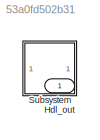
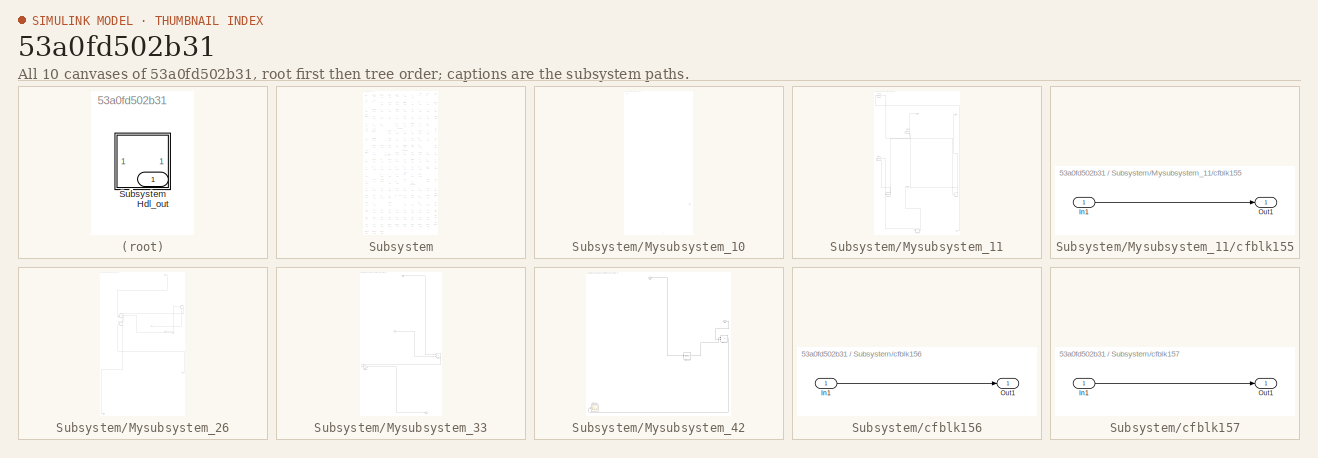
[diagram: thumbnail index - all 10 canvases of the model, root first then tree order]
MODEL slx_53a0fd502b31
KIND model
CONFIG AbsTol = auto
CONFIG EnableMultiTasking = off
CONFIG FixedStep = auto
CONFIG MaxStep = auto
CONFIG MinStep = auto
CONFIG RelTol = 1e-3
CONFIG SampleTimeConstraint = Unconstrained
CONFIG SolverName = VariableStepAuto
CONFIG StartTime = 0.0
CONFIG StopTime = 10.0
BLOCK [Outport] Hdl_out
  OutDataTypeStr = uint8
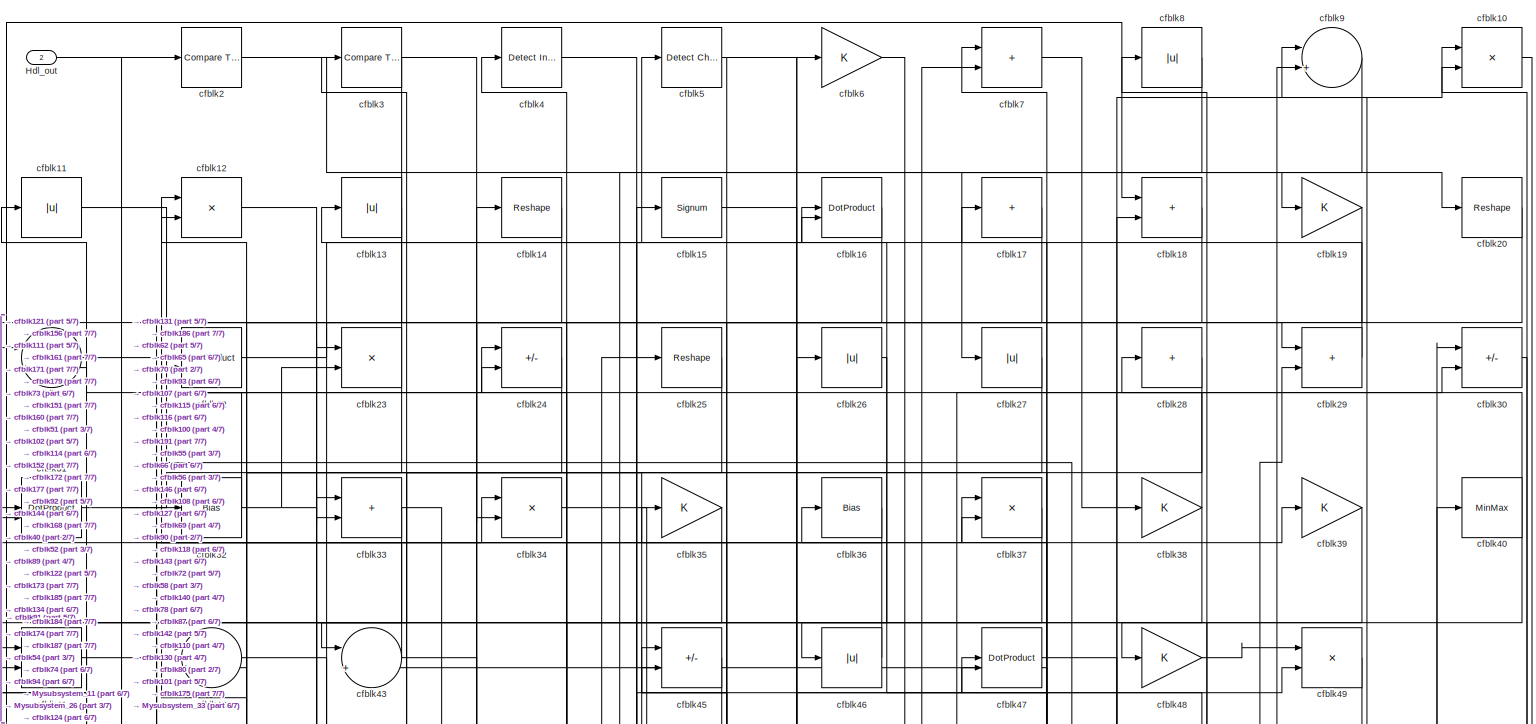
[diagram: Subsystem - part 1/7, full width, top band]
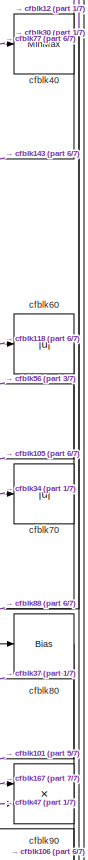
[diagram: Subsystem - part 2/7, top right region]
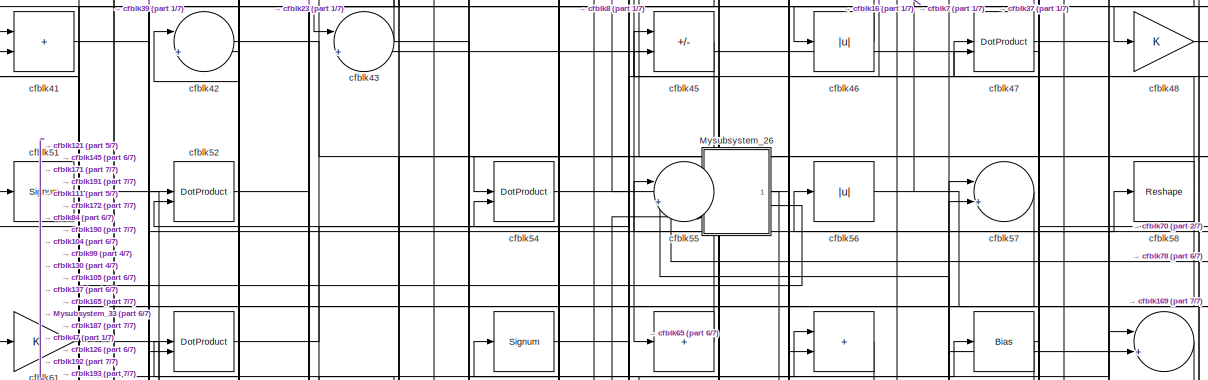
[diagram: Subsystem - part 3/7, full width, top band]
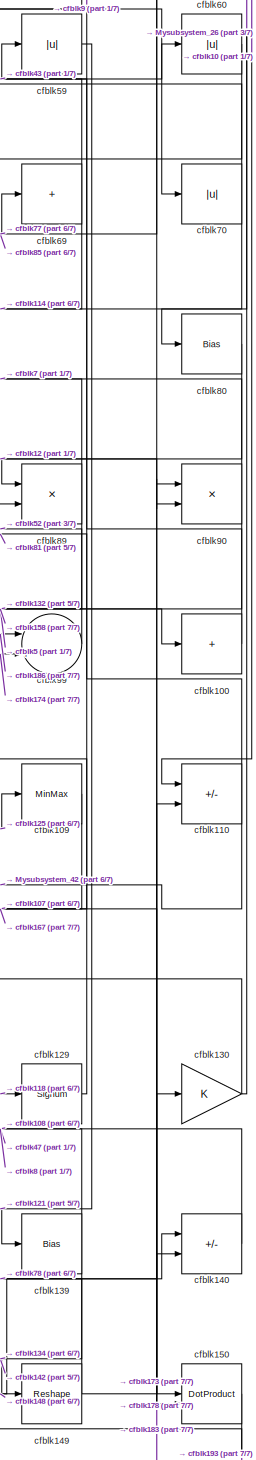
[diagram: Subsystem - part 4/7, middle right region]
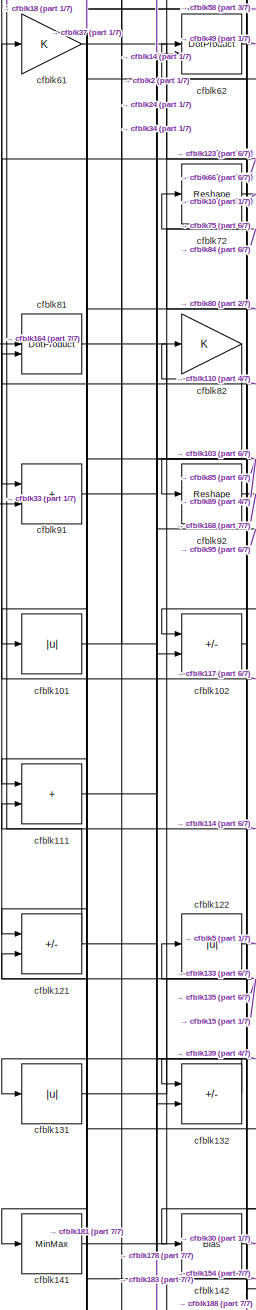
[diagram: Subsystem - part 5/7, middle left region]
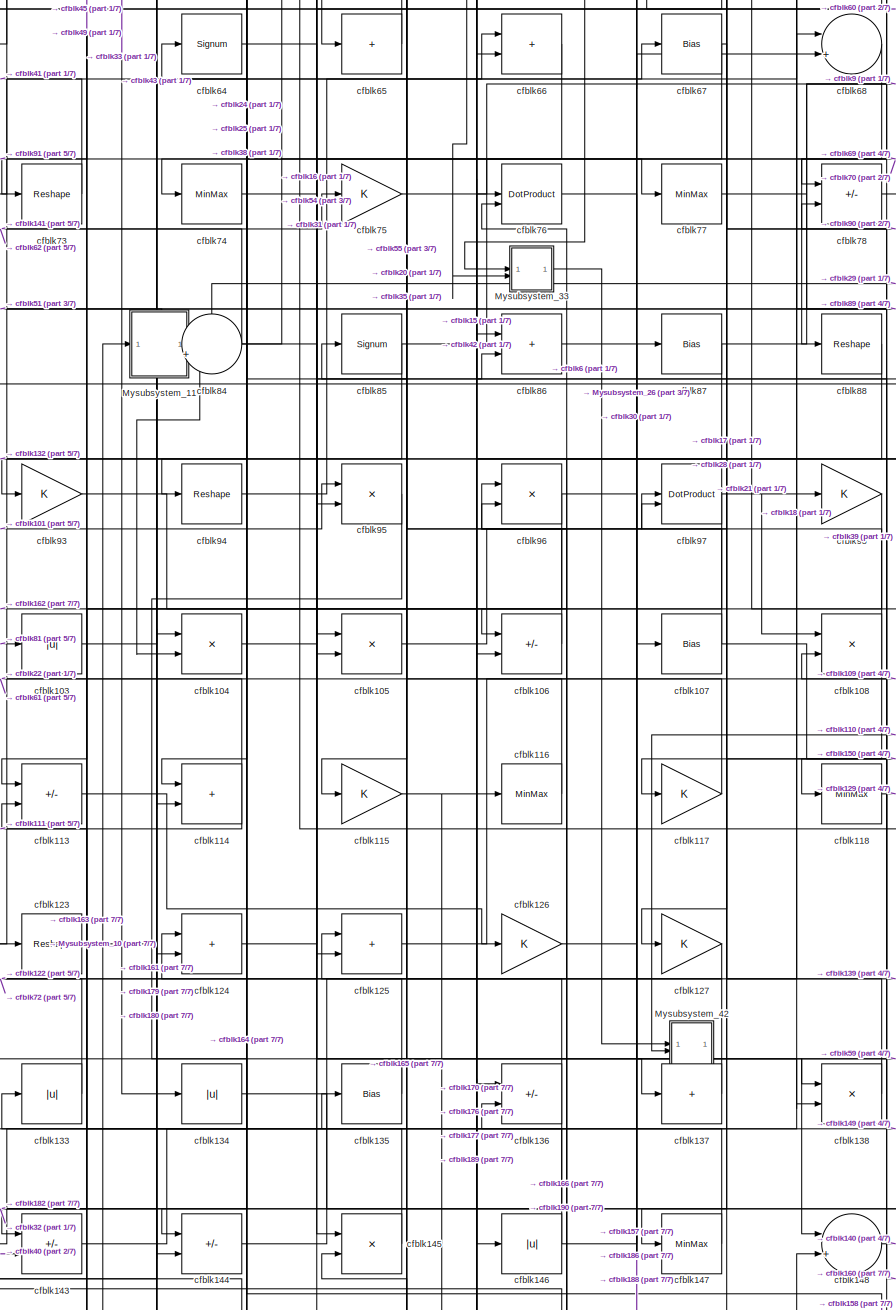
[diagram: Subsystem - part 6/7, central region]
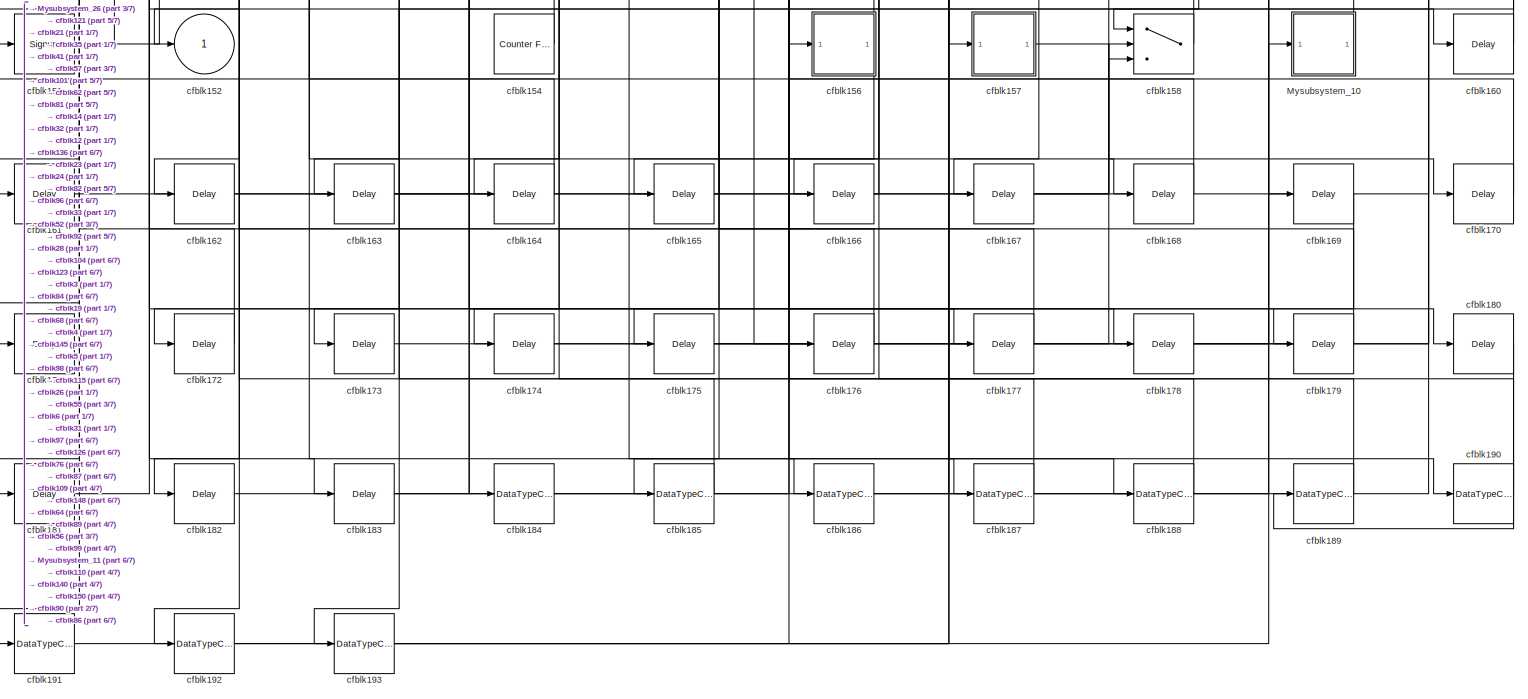
[diagram: Subsystem - part 7/7, full width, bottom band]
BLOCK [SubSystem] Subsystem
BLOCK [Outport] Subsystem/Hdl_out
  OutDataTypeStr = uint8
  Port = 2
BLOCK [SubSystem] Subsystem/Mysubsystem_10
  RTWFcnName = Mysubsystem_10
  RTWFcnNameOpts = User specified
  RTWFileNameOpts = Use function name
  RTWSystemCode = Reusable function
  TreatAsAtomicUnit = on
BLOCK [Inport] Subsystem/Mysubsystem_10/In1
BLOCK [Outport] Subsystem/Mysubsystem_10/Out1
BLOCK [Delay] Subsystem/Mysubsystem_10/cfblk159
  InputPortMap = u0
  SampleTime = 1
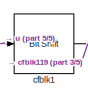
[diagram: Subsystem/Mysubsystem_11 - part 1/5, top left region]
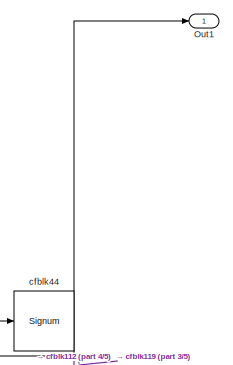
[diagram: Subsystem/Mysubsystem_11 - part 2/5, top center region]
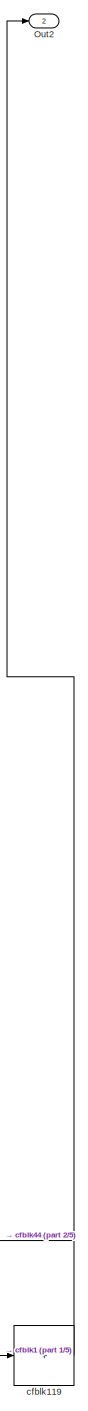
[diagram: Subsystem/Mysubsystem_11 - part 3/5, middle right region]
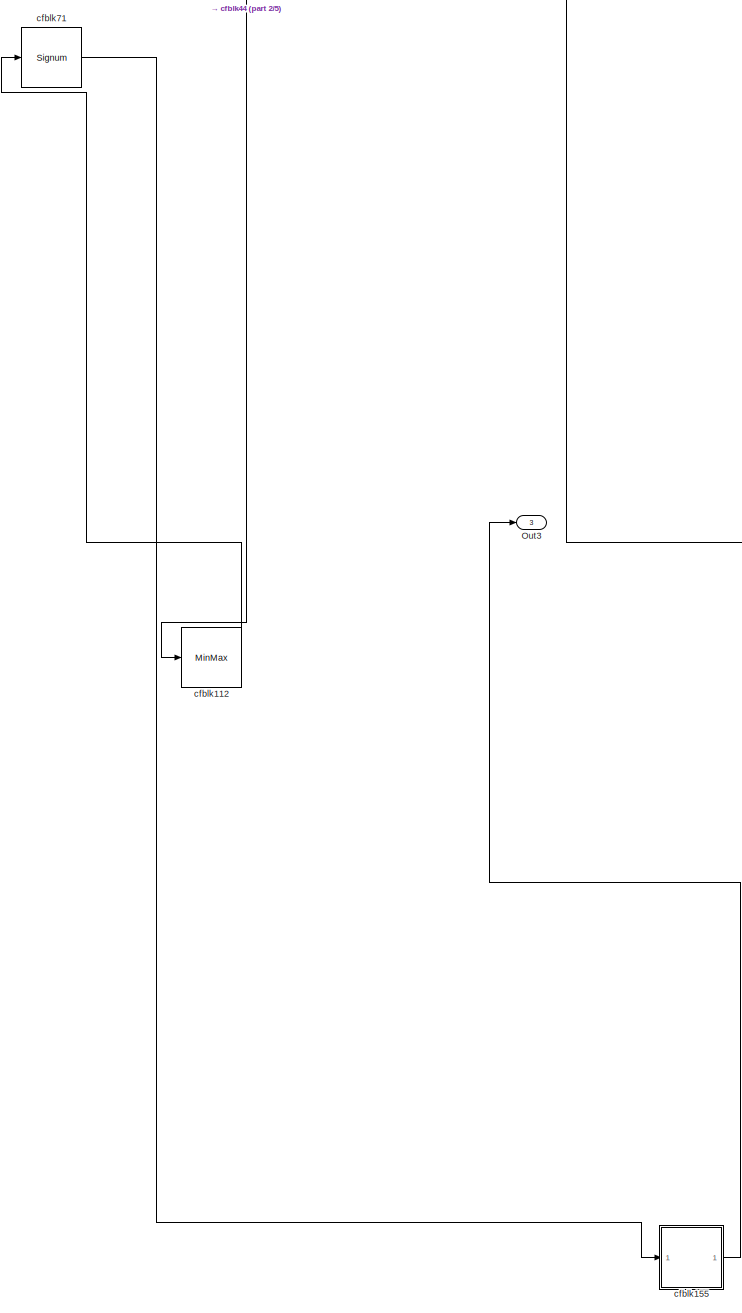
[diagram: Subsystem/Mysubsystem_11 - part 4/5, bottom left region]
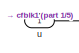
[diagram: Subsystem/Mysubsystem_11 - part 5/5, bottom right region]
BLOCK [SubSystem] Subsystem/Mysubsystem_11
  RTWFcnName = Mysubsystem_11
  RTWFcnNameOpts = User specified
  RTWFileNameOpts = Use function name
  RTWSystemCode = Reusable function
  TreatAsAtomicUnit = on
BLOCK [Outport] Subsystem/Mysubsystem_11/Out1
BLOCK [Outport] Subsystem/Mysubsystem_11/Out2
  Port = 2
BLOCK [Outport] Subsystem/Mysubsystem_11/Out3
  Port = 3
BLOCK [Reference] Subsystem/Mysubsystem_11/cfblk1  REF=hdlsllib/Logic and Bit
Operations/Bit Shift
  SourceBlock = hdlsllib/Logic and Bit\nOperations/Bit Shift
  SourceType = Bit Shift
BLOCK [MinMax] Subsystem/Mysubsystem_11/cfblk112
BLOCK [Sum] Subsystem/Mysubsystem_11/cfblk119
  IconShape = rectangular
  Inputs = +
BLOCK [SubSystem] Subsystem/Mysubsystem_11/cfblk155
  LibrarySourceBlock = hdlsllib/Ports &\nSubsystems/Subsystem
BLOCK [Inport] Subsystem/Mysubsystem_11/cfblk155/In1
BLOCK [Outport] Subsystem/Mysubsystem_11/cfblk155/Out1
BLOCK [Signum] Subsystem/Mysubsystem_11/cfblk44
BLOCK [Signum] Subsystem/Mysubsystem_11/cfblk71
BLOCK [Inport] Subsystem/Mysubsystem_11/u
BLOCK [SubSystem] Subsystem/Mysubsystem_26
  RTWFcnName = Mysubsystem_26
  RTWFcnNameOpts = User specified
  RTWFileNameOpts = Use function name
  RTWSystemCode = Reusable function
  TreatAsAtomicUnit = on
BLOCK [Inport] Subsystem/Mysubsystem_26/In1
BLOCK [Inport] Subsystem/Mysubsystem_26/In2
  Port = 2
BLOCK [Inport] Subsystem/Mysubsystem_26/In3
  Port = 3
BLOCK [Inport] Subsystem/Mysubsystem_26/In4
  Port = 4
BLOCK [Outport] Subsystem/Mysubsystem_26/Out1
BLOCK [Outport] Subsystem/Mysubsystem_26/Out2
  Port = 2
BLOCK [Sum] Subsystem/Mysubsystem_26/cfblk50
  Inputs = |++
BLOCK [Sum] Subsystem/Mysubsystem_26/cfblk53
  IconShape = rectangular
  Inputs = +-
BLOCK [Sum] Subsystem/Mysubsystem_26/cfblk63
  IconShape = rectangular
BLOCK [SubSystem] Subsystem/Mysubsystem_33
  RTWFcnName = Mysubsystem_33
  RTWFcnNameOpts = User specified
  RTWFileNameOpts = Use function name
  RTWSystemCode = Reusable function
  TreatAsAtomicUnit = on
BLOCK [Inport] Subsystem/Mysubsystem_33/In1
BLOCK [Inport] Subsystem/Mysubsystem_33/In2
  Port = 2
BLOCK [Outport] Subsystem/Mysubsystem_33/Out1
BLOCK [Product] Subsystem/Mysubsystem_33/cfblk79
  Inputs = */
  RndMeth = Zero
  SaturateOnIntegerOverflow = on
BLOCK [Gain] Subsystem/Mysubsystem_33/cfblk83
BLOCK [SubSystem] Subsystem/Mysubsystem_42
  RTWFcnName = Mysubsystem_42
  RTWFcnNameOpts = User specified
  RTWFileNameOpts = Use function name
  RTWSystemCode = Reusable function
  TreatAsAtomicUnit = on
BLOCK [Inport] Subsystem/Mysubsystem_42/In1
BLOCK [Inport] Subsystem/Mysubsystem_42/In2
  Port = 2
BLOCK [Product] Subsystem/Mysubsystem_42/cfblk120
  Inputs = */
  RndMeth = Zero
  SaturateOnIntegerOverflow = on
BLOCK [MinMax] Subsystem/Mysubsystem_42/cfblk128
BLOCK [Scope] Subsystem/Mysubsystem_42/cfblk153
  Floating = off
  NumInputPorts = 1
  ScopeSpecificationString = Simulink.scopes.TimeScopeBlockCfg('CurrentConfiguration', extmgr.ConfigurationSet(extmgr.Configuration('Core','General UI',true),extmgr.Configuration('Core','Source UI',true),extmgr.Configuration('Sources','WiredSimulink',true,'DataLoggingVariableName','ScopeData2','DataLoggingSaveFormat','Array','DataLoggingLimitDataPoints',true,'DataLoggingDecimation','1'),extmgr.Configuration('Visuals','Time Do...<+868ch>
BLOCK [Product] Subsystem/cfblk10
  Inputs = */
  OutDataTypeStr = uint8
  RndMeth = Zero
  SaturateOnIntegerOverflow = on
BLOCK [Sum] Subsystem/cfblk100
  IconShape = rectangular
  Inputs = +
  OutDataTypeStr = uint8
BLOCK [Abs] Subsystem/cfblk101
  OutDataTypeStr = uint8
  SaturateOnIntegerOverflow = off
BLOCK [Sum] Subsystem/cfblk102
  IconShape = rectangular
  Inputs = +-
  OutDataTypeStr = uint8
BLOCK [Abs] Subsystem/cfblk103
  OutDataTypeStr = uint8
  SaturateOnIntegerOverflow = off
BLOCK [Product] Subsystem/cfblk104
  Inputs = */
  OutDataTypeStr = uint8
  RndMeth = Zero
  SaturateOnIntegerOverflow = on
BLOCK [Product] Subsystem/cfblk105
  Inputs = */
  OutDataTypeStr = uint8
  RndMeth = Zero
  SaturateOnIntegerOverflow = on
BLOCK [Sum] Subsystem/cfblk106
  IconShape = rectangular
  Inputs = +-
  OutDataTypeStr = uint8
BLOCK [Bias] Subsystem/cfblk107
  Bias = 0.0
  SaturateOnIntegerOverflow = off
BLOCK [Product] Subsystem/cfblk108
  Inputs = */
  OutDataTypeStr = uint8
  RndMeth = Zero
  SaturateOnIntegerOverflow = on
BLOCK [MinMax] Subsystem/cfblk109
  OutDataTypeStr = uint8
BLOCK [Abs] Subsystem/cfblk11
  OutDataTypeStr = uint8
  SaturateOnIntegerOverflow = off
BLOCK [Sum] Subsystem/cfblk110
  IconShape = rectangular
  Inputs = +-
  OutDataTypeStr = uint8
BLOCK [Sum] Subsystem/cfblk111
  IconShape = rectangular
  OutDataTypeStr = uint8
BLOCK [Sum] Subsystem/cfblk113
  IconShape = rectangular
  Inputs = +-
  OutDataTypeStr = uint8
BLOCK [Sum] Subsystem/cfblk114
  IconShape = rectangular
  OutDataTypeStr = uint8
BLOCK [Gain] Subsystem/cfblk115
  OutDataTypeStr = uint8
BLOCK [MinMax] Subsystem/cfblk116
  OutDataTypeStr = uint8
BLOCK [Gain] Subsystem/cfblk117
  OutDataTypeStr = uint8
BLOCK [MinMax] Subsystem/cfblk118
  OutDataTypeStr = uint8
BLOCK [Product] Subsystem/cfblk12
  Inputs = */
  OutDataTypeStr = uint8
  RndMeth = Zero
  SaturateOnIntegerOverflow = on
BLOCK [Sum] Subsystem/cfblk121
  IconShape = rectangular
  Inputs = +-
  OutDataTypeStr = uint8
BLOCK [Abs] Subsystem/cfblk122
  OutDataTypeStr = uint8
  SaturateOnIntegerOverflow = off
BLOCK [Reshape] Subsystem/cfblk123
BLOCK [Sum] Subsystem/cfblk124
  IconShape = rectangular
  OutDataTypeStr = uint8
BLOCK [Sum] Subsystem/cfblk125
  IconShape = rectangular
  OutDataTypeStr = uint8
BLOCK [Gain] Subsystem/cfblk126
  OutDataTypeStr = uint8
BLOCK [Gain] Subsystem/cfblk127
  OutDataTypeStr = uint8
BLOCK [Signum] Subsystem/cfblk129
BLOCK [Abs] Subsystem/cfblk13
  OutDataTypeStr = uint8
  SaturateOnIntegerOverflow = off
BLOCK [Gain] Subsystem/cfblk130
  OutDataTypeStr = uint8
BLOCK [Abs] Subsystem/cfblk131
  OutDataTypeStr = uint8
  SaturateOnIntegerOverflow = off
BLOCK [Sum] Subsystem/cfblk132
  IconShape = rectangular
  Inputs = +-
  OutDataTypeStr = uint8
BLOCK [Abs] Subsystem/cfblk133
  OutDataTypeStr = uint8
  SaturateOnIntegerOverflow = off
BLOCK [Abs] Subsystem/cfblk134
  OutDataTypeStr = uint8
  SaturateOnIntegerOverflow = off
BLOCK [Bias] Subsystem/cfblk135
  Bias = 0.0
  SaturateOnIntegerOverflow = off
BLOCK [Sum] Subsystem/cfblk136
  IconShape = rectangular
  Inputs = +-
  OutDataTypeStr = uint8
BLOCK [Sum] Subsystem/cfblk137
  IconShape = rectangular
  Inputs = +
  OutDataTypeStr = uint8
BLOCK [Product] Subsystem/cfblk138
  Inputs = */
  OutDataTypeStr = uint8
  RndMeth = Zero
  SaturateOnIntegerOverflow = on
BLOCK [Bias] Subsystem/cfblk139
  Bias = 0.0
  SaturateOnIntegerOverflow = off
BLOCK [Reshape] Subsystem/cfblk14
BLOCK [Sum] Subsystem/cfblk140
  IconShape = rectangular
  Inputs = +-
  OutDataTypeStr = uint8
BLOCK [MinMax] Subsystem/cfblk141
  OutDataTypeStr = uint8
BLOCK [Bias] Subsystem/cfblk142
  Bias = 0.0
  SaturateOnIntegerOverflow = off
BLOCK [Sum] Subsystem/cfblk143
  IconShape = rectangular
  Inputs = +-
  OutDataTypeStr = uint8
BLOCK [Sum] Subsystem/cfblk144
  IconShape = rectangular
  Inputs = +-
  OutDataTypeStr = uint8
BLOCK [Product] Subsystem/cfblk145
  Inputs = */
  OutDataTypeStr = uint8
  RndMeth = Zero
  SaturateOnIntegerOverflow = on
BLOCK [Abs] Subsystem/cfblk146
  OutDataTypeStr = uint8
  SaturateOnIntegerOverflow = off
BLOCK [MinMax] Subsystem/cfblk147
  OutDataTypeStr = uint8
BLOCK [Sum] Subsystem/cfblk148
  Inputs = |++
  OutDataTypeStr = uint8
BLOCK [Reshape] Subsystem/cfblk149
BLOCK [Signum] Subsystem/cfblk15
BLOCK [DotProduct] Subsystem/cfblk150
  OutDataTypeStr = uint8
BLOCK [Signum] Subsystem/cfblk151
BLOCK [Outport] Subsystem/cfblk152
  OutDataTypeStr = uint8
  VectorParamsAs1DForOutWhenUnconnected = off
BLOCK [Reference] Subsystem/cfblk154  REF=hdlsllib/Sources/Counter
Free-Running
  SourceBlock = hdlsllib/Sources/Counter\nFree-Running
  SourceType = Counter Free-Running
BLOCK [SubSystem] Subsystem/cfblk156
  LibrarySourceBlock = hdlsllib/Ports &\nSubsystems/Subsystem
BLOCK [Inport] Subsystem/cfblk156/In1
BLOCK [Outport] Subsystem/cfblk156/Out1
BLOCK [SubSystem] Subsystem/cfblk157
  LibrarySourceBlock = hdlsllib/Ports &\nSubsystems/Subsystem
BLOCK [Inport] Subsystem/cfblk157/In1
BLOCK [Outport] Subsystem/cfblk157/Out1
BLOCK [Switch] Subsystem/cfblk158
  InputSameDT = off
  OutDataTypeStr = uint8
  SaturateOnIntegerOverflow = off
BLOCK [DotProduct] Subsystem/cfblk16
  OutDataTypeStr = uint8
BLOCK [Delay] Subsystem/cfblk160
  InputPortMap = u0
  SampleTime = 1
BLOCK [Delay] Subsystem/cfblk161
  InputPortMap = u0
  SampleTime = 1
BLOCK [Delay] Subsystem/cfblk162
  InputPortMap = u0
  SampleTime = 1
BLOCK [Delay] Subsystem/cfblk163
  InputPortMap = u0
  SampleTime = 1
BLOCK [Delay] Subsystem/cfblk164
  InputPortMap = u0
  SampleTime = 1
BLOCK [Delay] Subsystem/cfblk165
  InputPortMap = u0
  SampleTime = 1
BLOCK [Delay] Subsystem/cfblk166
  InputPortMap = u0
  SampleTime = 1
BLOCK [Delay] Subsystem/cfblk167
  InputPortMap = u0
  SampleTime = 1
BLOCK [Delay] Subsystem/cfblk168
  InputPortMap = u0
  SampleTime = 1
BLOCK [Delay] Subsystem/cfblk169
  InputPortMap = u0
  SampleTime = 1
BLOCK [Sum] Subsystem/cfblk17
  IconShape = rectangular
  Inputs = +
  OutDataTypeStr = uint8
BLOCK [Delay] Subsystem/cfblk170
  InputPortMap = u0
  SampleTime = 1
BLOCK [Delay] Subsystem/cfblk171
  InputPortMap = u0
  SampleTime = 1
BLOCK [Delay] Subsystem/cfblk172
  InputPortMap = u0
  SampleTime = 1
BLOCK [Delay] Subsystem/cfblk173
  InputPortMap = u0
  SampleTime = 1
BLOCK [Delay] Subsystem/cfblk174
  InputPortMap = u0
  SampleTime = 1
BLOCK [Delay] Subsystem/cfblk175
  InputPortMap = u0
  SampleTime = 1
BLOCK [Delay] Subsystem/cfblk176
  InputPortMap = u0
  SampleTime = 1
BLOCK [Delay] Subsystem/cfblk177
  InputPortMap = u0
  SampleTime = 1
BLOCK [Delay] Subsystem/cfblk178
  InputPortMap = u0
  SampleTime = 1
BLOCK [Delay] Subsystem/cfblk179
  InputPortMap = u0
  SampleTime = 1
BLOCK [Sum] Subsystem/cfblk18
  IconShape = rectangular
  OutDataTypeStr = uint8
BLOCK [Delay] Subsystem/cfblk180
  InputPortMap = u0
  SampleTime = 1
BLOCK [Delay] Subsystem/cfblk181
  InputPortMap = u0
  SampleTime = 1
BLOCK [Delay] Subsystem/cfblk182
  InputPortMap = u0
  SampleTime = 1
BLOCK [Delay] Subsystem/cfblk183
  InputPortMap = u0
  SampleTime = 1
BLOCK [DataTypeConversion] Subsystem/cfblk184
  OutDataTypeStr = uint8
  RndMeth = Floor
  SaturateOnIntegerOverflow = off
BLOCK [DataTypeConversion] Subsystem/cfblk185
  OutDataTypeStr = uint8
  RndMeth = Floor
  SaturateOnIntegerOverflow = off
BLOCK [DataTypeConversion] Subsystem/cfblk186
  OutDataTypeStr = uint8
  RndMeth = Floor
  SaturateOnIntegerOverflow = off
BLOCK [DataTypeConversion] Subsystem/cfblk187
  OutDataTypeStr = uint8
  RndMeth = Floor
  SaturateOnIntegerOverflow = off
BLOCK [DataTypeConversion] Subsystem/cfblk188
  OutDataTypeStr = uint8
  RndMeth = Floor
  SaturateOnIntegerOverflow = off
BLOCK [DataTypeConversion] Subsystem/cfblk189
  OutDataTypeStr = uint8
  RndMeth = Floor
  SaturateOnIntegerOverflow = off
BLOCK [Gain] Subsystem/cfblk19
  OutDataTypeStr = uint8
BLOCK [DataTypeConversion] Subsystem/cfblk190
  OutDataTypeStr = uint8
  RndMeth = Floor
  SaturateOnIntegerOverflow = off
BLOCK [DataTypeConversion] Subsystem/cfblk191
  OutDataTypeStr = uint8
  RndMeth = Floor
  SaturateOnIntegerOverflow = off
BLOCK [DataTypeConversion] Subsystem/cfblk192
  OutDataTypeStr = uint8
  RndMeth = Floor
  SaturateOnIntegerOverflow = off
BLOCK [DataTypeConversion] Subsystem/cfblk193
  OutDataTypeStr = uint8
  RndMeth = Floor
  SaturateOnIntegerOverflow = off
BLOCK [Reference] Subsystem/cfblk2  REF=hdlsllib/Logic and Bit
Operations/Compare
To Zero
  SourceBlock = hdlsllib/Logic and Bit\nOperations/Compare\nTo Zero
  SourceType = Compare To Zero
BLOCK [Reshape] Subsystem/cfblk20
BLOCK [Sum] Subsystem/cfblk21
  Inputs = |++
  OutDataTypeStr = uint8
BLOCK [DotProduct] Subsystem/cfblk22
  OutDataTypeStr = uint8
BLOCK [Product] Subsystem/cfblk23
  Inputs = */
  OutDataTypeStr = uint8
  RndMeth = Zero
  SaturateOnIntegerOverflow = on
BLOCK [Sum] Subsystem/cfblk24
  IconShape = rectangular
  Inputs = +-
  OutDataTypeStr = uint8
BLOCK [Reshape] Subsystem/cfblk25
BLOCK [Abs] Subsystem/cfblk26
  OutDataTypeStr = uint8
  SaturateOnIntegerOverflow = off
BLOCK [Abs] Subsystem/cfblk27
  OutDataTypeStr = uint8
  SaturateOnIntegerOverflow = off
BLOCK [Sum] Subsystem/cfblk28
  IconShape = rectangular
  Inputs = +
  OutDataTypeStr = uint8
BLOCK [Sum] Subsystem/cfblk29
  IconShape = rectangular
  OutDataTypeStr = uint8
BLOCK [Reference] Subsystem/cfblk3  REF=hdlsllib/Logic and Bit
Operations/Compare
To Constant
  SourceBlock = hdlsllib/Logic and Bit\nOperations/Compare\nTo Constant
  SourceType = Compare To Constant
BLOCK [Sum] Subsystem/cfblk30
  IconShape = rectangular
  Inputs = +-
  OutDataTypeStr = uint8
BLOCK [DotProduct] Subsystem/cfblk31
  OutDataTypeStr = uint8
BLOCK [Bias] Subsystem/cfblk32
  Bias = 0.0
  SaturateOnIntegerOverflow = off
BLOCK [Sum] Subsystem/cfblk33
  IconShape = rectangular
  OutDataTypeStr = uint8
BLOCK [Product] Subsystem/cfblk34
  Inputs = */
  OutDataTypeStr = uint8
  RndMeth = Zero
  SaturateOnIntegerOverflow = on
BLOCK [Gain] Subsystem/cfblk35
  OutDataTypeStr = uint8
BLOCK [Bias] Subsystem/cfblk36
  Bias = 0.0
  SaturateOnIntegerOverflow = off
BLOCK [Product] Subsystem/cfblk37
  Inputs = */
  OutDataTypeStr = uint8
  RndMeth = Zero
  SaturateOnIntegerOverflow = on
BLOCK [Gain] Subsystem/cfblk38
  OutDataTypeStr = uint8
BLOCK [Gain] Subsystem/cfblk39
  OutDataTypeStr = uint8
BLOCK [Reference] Subsystem/cfblk4  REF=simulink/Logic and Bit
Operations/Detect
Increase
  LibrarySourceBlock = hdlsllib/Logic and Bit\nOperations/Detect\nIncrease
  SourceBlock = simulink/Logic and Bit\nOperations/Detect\nIncrease
  SourceType = Detect Increase
BLOCK [MinMax] Subsystem/cfblk40
  OutDataTypeStr = uint8
BLOCK [Sum] Subsystem/cfblk41
  IconShape = rectangular
  OutDataTypeStr = uint8
BLOCK [Sum] Subsystem/cfblk42
  Inputs = |++
  OutDataTypeStr = uint8
BLOCK [Sum] Subsystem/cfblk43
  Inputs = |++
  OutDataTypeStr = uint8
BLOCK [Sum] Subsystem/cfblk45
  IconShape = rectangular
  Inputs = +-
  OutDataTypeStr = uint8
BLOCK [Abs] Subsystem/cfblk46
  OutDataTypeStr = uint8
  SaturateOnIntegerOverflow = off
BLOCK [DotProduct] Subsystem/cfblk47
  OutDataTypeStr = uint8
BLOCK [Gain] Subsystem/cfblk48
  OutDataTypeStr = uint8
BLOCK [Product] Subsystem/cfblk49
  Inputs = */
  OutDataTypeStr = uint8
  RndMeth = Zero
  SaturateOnIntegerOverflow = on
BLOCK [Reference] Subsystem/cfblk5  REF=simulink/Logic and Bit
Operations/Detect
Change
  LibrarySourceBlock = hdlsllib/Logic and Bit\nOperations/Detect\nChange
  SourceBlock = simulink/Logic and Bit\nOperations/Detect\nChange
  SourceType = Detect Change
BLOCK [Signum] Subsystem/cfblk51
BLOCK [DotProduct] Subsystem/cfblk52
  OutDataTypeStr = uint8
BLOCK [DotProduct] Subsystem/cfblk54
  OutDataTypeStr = uint8
BLOCK [Sum] Subsystem/cfblk55
  Inputs = |++
  OutDataTypeStr = uint8
BLOCK [Abs] Subsystem/cfblk56
  OutDataTypeStr = uint8
  SaturateOnIntegerOverflow = off
BLOCK [Sum] Subsystem/cfblk57
  Inputs = |++
  OutDataTypeStr = uint8
BLOCK [Reshape] Subsystem/cfblk58
BLOCK [Abs] Subsystem/cfblk59
  OutDataTypeStr = uint8
  SaturateOnIntegerOverflow = off
BLOCK [Gain] Subsystem/cfblk6
  OutDataTypeStr = uint8
BLOCK [Abs] Subsystem/cfblk60
  OutDataTypeStr = uint8
  SaturateOnIntegerOverflow = off
BLOCK [Gain] Subsystem/cfblk61
  OutDataTypeStr = uint8
BLOCK [DotProduct] Subsystem/cfblk62
  OutDataTypeStr = uint8
BLOCK [Signum] Subsystem/cfblk64
BLOCK [Sum] Subsystem/cfblk65
  IconShape = rectangular
  Inputs = +
  OutDataTypeStr = uint8
BLOCK [Sum] Subsystem/cfblk66
  IconShape = rectangular
  OutDataTypeStr = uint8
BLOCK [Bias] Subsystem/cfblk67
  Bias = 0.0
  SaturateOnIntegerOverflow = off
BLOCK [Sum] Subsystem/cfblk68
  Inputs = |++
  OutDataTypeStr = uint8
BLOCK [Sum] Subsystem/cfblk69
  IconShape = rectangular
  Inputs = +
  OutDataTypeStr = uint8
BLOCK [Sum] Subsystem/cfblk7
  IconShape = rectangular
  OutDataTypeStr = uint8
BLOCK [Abs] Subsystem/cfblk70
  OutDataTypeStr = uint8
  SaturateOnIntegerOverflow = off
BLOCK [Reshape] Subsystem/cfblk72
BLOCK [Reshape] Subsystem/cfblk73
BLOCK [MinMax] Subsystem/cfblk74
  OutDataTypeStr = uint8
BLOCK [Gain] Subsystem/cfblk75
  OutDataTypeStr = uint8
BLOCK [DotProduct] Subsystem/cfblk76
  OutDataTypeStr = uint8
BLOCK [MinMax] Subsystem/cfblk77
  OutDataTypeStr = uint8
BLOCK [Sum] Subsystem/cfblk78
  IconShape = rectangular
  Inputs = +-
  OutDataTypeStr = uint8
BLOCK [Abs] Subsystem/cfblk8
  OutDataTypeStr = uint8
  SaturateOnIntegerOverflow = off
BLOCK [Bias] Subsystem/cfblk80
  Bias = 0.0
  SaturateOnIntegerOverflow = off
BLOCK [DotProduct] Subsystem/cfblk81
  OutDataTypeStr = uint8
BLOCK [Gain] Subsystem/cfblk82
  OutDataTypeStr = uint8
BLOCK [Sum] Subsystem/cfblk84
  Inputs = |++
  OutDataTypeStr = uint8
BLOCK [Signum] Subsystem/cfblk85
BLOCK [Sum] Subsystem/cfblk86
  IconShape = rectangular
  OutDataTypeStr = uint8
BLOCK [Bias] Subsystem/cfblk87
  Bias = 0.0
  SaturateOnIntegerOverflow = off
BLOCK [Reshape] Subsystem/cfblk88
BLOCK [Product] Subsystem/cfblk89
  Inputs = */
  OutDataTypeStr = uint8
  RndMeth = Zero
  SaturateOnIntegerOverflow = on
BLOCK [Sum] Subsystem/cfblk9
  Inputs = |++
  OutDataTypeStr = uint8
BLOCK [Product] Subsystem/cfblk90
  Inputs = */
  OutDataTypeStr = uint8
  RndMeth = Zero
  SaturateOnIntegerOverflow = on
BLOCK [Sum] Subsystem/cfblk91
  IconShape = rectangular
  OutDataTypeStr = uint8
BLOCK [Reshape] Subsystem/cfblk92
BLOCK [Gain] Subsystem/cfblk93
  OutDataTypeStr = uint8
BLOCK [Reshape] Subsystem/cfblk94
BLOCK [Product] Subsystem/cfblk95
  Inputs = */
  OutDataTypeStr = uint8
  RndMeth = Zero
  SaturateOnIntegerOverflow = on
BLOCK [Product] Subsystem/cfblk96
  Inputs = */
  OutDataTypeStr = uint8
  RndMeth = Zero
  SaturateOnIntegerOverflow = on
BLOCK [DotProduct] Subsystem/cfblk97
  OutDataTypeStr = uint8
BLOCK [Gain] Subsystem/cfblk98
  OutDataTypeStr = uint8
BLOCK [Sum] Subsystem/cfblk99
  Inputs = |++
  OutDataTypeStr = uint8
LINE Subsystem/Mysubsystem_10/In1:1 -> Subsystem/Mysubsystem_10/cfblk159:1
LINE Subsystem/Mysubsystem_10/cfblk159:1 -> Subsystem/Mysubsystem_10/Out1:1
LINE Subsystem/Mysubsystem_10:1 -> Subsystem/Mysubsystem_11:1
LINE Subsystem/Mysubsystem_11/cfblk112:1 -> Subsystem/Mysubsystem_11/cfblk71:1
NET Subsystem/Mysubsystem_11/cfblk119:1 -> Subsystem/Mysubsystem_11/Out2:1, Subsystem/Mysubsystem_11/cfblk44:1
LINE Subsystem/Mysubsystem_11/cfblk155/In1:1 -> Subsystem/Mysubsystem_11/cfblk155/Out1:1
LINE Subsystem/Mysubsystem_11/cfblk155:1 -> Subsystem/Mysubsystem_11/Out3:1
LINE Subsystem/Mysubsystem_11/cfblk1:1 -> Subsystem/Mysubsystem_11/cfblk119:1
NET Subsystem/Mysubsystem_11/cfblk44:1 -> Subsystem/Mysubsystem_11/Out1:1, Subsystem/Mysubsystem_11/cfblk112:1
LINE Subsystem/Mysubsystem_11/cfblk71:1 -> Subsystem/Mysubsystem_11/cfblk155:1
LINE Subsystem/Mysubsystem_11/u:1 -> Subsystem/Mysubsystem_11/cfblk1:1
LINE Subsystem/Mysubsystem_11:1 -> Subsystem/cfblk25:1
LINE Subsystem/Mysubsystem_11:2 -> Subsystem/cfblk29:2
LINE Subsystem/Mysubsystem_11:3 -> Subsystem/cfblk104:2
LINE Subsystem/Mysubsystem_26/In1:1 -> Subsystem/Mysubsystem_26/cfblk53:2
LINE Subsystem/Mysubsystem_26/In2:1 -> Subsystem/Mysubsystem_26/cfblk50:2
LINE Subsystem/Mysubsystem_26/In3:1 -> Subsystem/Mysubsystem_26/cfblk50:1
LINE Subsystem/Mysubsystem_26/In4:1 -> Subsystem/Mysubsystem_26/cfblk63:2
LINE Subsystem/Mysubsystem_26/cfblk50:1 -> Subsystem/Mysubsystem_26/cfblk63:1
LINE Subsystem/Mysubsystem_26/cfblk53:1 -> Subsystem/Mysubsystem_26/Out1:1
NET Subsystem/Mysubsystem_26/cfblk63:1 -> Subsystem/Mysubsystem_26/Out2:1, Subsystem/Mysubsystem_26/cfblk53:1
LINE Subsystem/Mysubsystem_26:1 -> Subsystem/Mysubsystem_33:2
LINE Subsystem/Mysubsystem_26:2 -> Subsystem/cfblk171:1
LINE Subsystem/Mysubsystem_33/In1:1 -> Subsystem/Mysubsystem_33/cfblk79:1
LINE Subsystem/Mysubsystem_33/In2:1 -> Subsystem/Mysubsystem_33/cfblk79:2
LINE Subsystem/Mysubsystem_33/cfblk79:1 -> Subsystem/Mysubsystem_33/cfblk83:1
LINE Subsystem/Mysubsystem_33/cfblk83:1 -> Subsystem/Mysubsystem_33/Out1:1
LINE Subsystem/Mysubsystem_33:1 -> Subsystem/Mysubsystem_42:1
LINE Subsystem/Mysubsystem_42/In1:1 -> Subsystem/Mysubsystem_42/cfblk128:1
LINE Subsystem/Mysubsystem_42/In2:1 -> Subsystem/Mysubsystem_42/cfblk120:2
LINE Subsystem/Mysubsystem_42/cfblk120:1 -> Subsystem/Mysubsystem_42/cfblk153:1
LINE Subsystem/Mysubsystem_42/cfblk128:1 -> Subsystem/Mysubsystem_42/cfblk120:1
LINE Subsystem/cfblk100:1 -> Subsystem/cfblk9:1
NET Subsystem/cfblk101:1 -> Subsystem/cfblk178:1, Subsystem/cfblk24:2, Subsystem/cfblk2:1, Subsystem/cfblk95:1
LINE Subsystem/cfblk102:1 -> Subsystem/cfblk42:1
LINE Subsystem/cfblk103:1 -> Subsystem/cfblk67:1
NET Subsystem/cfblk104:1 -> Subsystem/cfblk54:2, Subsystem/cfblk86:2
LINE Subsystem/cfblk105:1 -> Subsystem/cfblk97:1
LINE Subsystem/cfblk106:1 -> Subsystem/cfblk96:1
NET Subsystem/cfblk107:1 -> Subsystem/cfblk150:1, Subsystem/cfblk45:2
NET Subsystem/cfblk108:1 -> Subsystem/cfblk117:1, Subsystem/cfblk17:1, Subsystem/cfblk45:1
LINE Subsystem/cfblk109:1 -> Subsystem/cfblk167:1
LINE Subsystem/cfblk10:1 -> Subsystem/cfblk110:1
NET Subsystem/cfblk110:1 -> Subsystem/Mysubsystem_42:2, Subsystem/cfblk81:2
LINE Subsystem/cfblk111:1 -> Subsystem/cfblk58:1
LINE Subsystem/cfblk113:1 -> Subsystem/cfblk125:2
NET Subsystem/cfblk114:1 -> Subsystem/cfblk111:2, Subsystem/cfblk22:1
NET Subsystem/cfblk115:1 -> Subsystem/cfblk176:1, Subsystem/cfblk177:1
LINE Subsystem/cfblk116:1 -> Subsystem/cfblk35:1
LINE Subsystem/cfblk117:1 -> Subsystem/cfblk61:1
NET Subsystem/cfblk118:1 -> Subsystem/cfblk129:1, Subsystem/cfblk60:1
LINE Subsystem/cfblk11:1 -> Subsystem/cfblk33:2
NET Subsystem/cfblk121:1 -> Subsystem/cfblk139:1, Subsystem/cfblk181:1, Subsystem/cfblk18:1
LINE Subsystem/cfblk122:1 -> Subsystem/cfblk5:1
NET Subsystem/cfblk123:1 -> Subsystem/cfblk179:1, Subsystem/cfblk180:1
LINE Subsystem/cfblk124:1 -> Subsystem/cfblk16:1
LINE Subsystem/cfblk125:1 -> Subsystem/cfblk109:1
NET Subsystem/cfblk126:1 -> Subsystem/Mysubsystem_26:2, Subsystem/cfblk157:1, Subsystem/cfblk68:2
LINE Subsystem/cfblk127:1 -> Subsystem/cfblk125:1
LINE Subsystem/cfblk129:1 -> Subsystem/cfblk59:1
LINE Subsystem/cfblk12:1 -> Subsystem/cfblk89:1
NET Subsystem/cfblk130:1 -> Subsystem/Mysubsystem_26:4, Subsystem/cfblk10:2
LINE Subsystem/cfblk131:1 -> Subsystem/cfblk15:1
LINE Subsystem/cfblk132:1 -> Subsystem/cfblk131:1
LINE Subsystem/cfblk133:1 -> Subsystem/cfblk122:1
LINE Subsystem/cfblk134:1 -> Subsystem/cfblk149:1
LINE Subsystem/cfblk135:1 -> Subsystem/cfblk72:1
NET Subsystem/cfblk136:1 -> Subsystem/cfblk182:1, Subsystem/cfblk85:1
LINE Subsystem/cfblk137:1 -> Subsystem/cfblk124:1
LINE Subsystem/cfblk138:1 -> Subsystem/cfblk97:2
NET Subsystem/cfblk139:1 -> Subsystem/cfblk108:2, Subsystem/cfblk142:1
LINE Subsystem/cfblk13:1 -> Subsystem/cfblk21:1
NET Subsystem/cfblk140:1 -> Subsystem/cfblk47:1, Subsystem/cfblk8:1
LINE Subsystem/cfblk141:1 -> Subsystem/cfblk75:1
LINE Subsystem/cfblk142:1 -> Subsystem/cfblk30:1
LINE Subsystem/cfblk143:1 -> Subsystem/cfblk18:2
LINE Subsystem/cfblk144:1 -> Subsystem/cfblk68:1
NET Subsystem/cfblk145:1 -> Subsystem/cfblk135:1, Subsystem/cfblk51:1
NET Subsystem/cfblk146:1 -> Subsystem/cfblk113:2, Subsystem/cfblk30:2
LINE Subsystem/cfblk147:1 -> Subsystem/cfblk136:2
LINE Subsystem/cfblk148:1 -> Subsystem/cfblk140:1
NET Subsystem/cfblk149:1 -> Subsystem/cfblk130:1, Subsystem/cfblk78:2
LINE Subsystem/cfblk14:1 -> Subsystem/cfblk102:2
LINE Subsystem/cfblk150:1 -> Subsystem/cfblk193:1
NET Subsystem/cfblk151:1 -> Subsystem/cfblk14:1, Subsystem/cfblk32:1
LINE Subsystem/cfblk154:1 -> Subsystem/cfblk121:2
LINE Subsystem/cfblk156/In1:1 -> Subsystem/cfblk156/Out1:1
NET Subsystem/cfblk156:1 -> Subsystem/cfblk185:1, Subsystem/cfblk31:1
LINE Subsystem/cfblk157/In1:1 -> Subsystem/cfblk157/Out1:1
LINE Subsystem/cfblk157:1 -> Subsystem/cfblk170:1
LINE Subsystem/cfblk158:1 -> Subsystem/cfblk64:1
LINE Subsystem/cfblk15:1 -> Subsystem/cfblk66:2
LINE Subsystem/cfblk160:1 -> Subsystem/cfblk86:1
LINE Subsystem/cfblk161:1 -> Subsystem/cfblk104:1
LINE Subsystem/cfblk162:1 -> Subsystem/cfblk148:2
LINE Subsystem/cfblk163:1 -> Subsystem/cfblk158:2
LINE Subsystem/cfblk164:1 -> Subsystem/cfblk81:1
LINE Subsystem/cfblk165:1 -> Subsystem/cfblk55:2
LINE Subsystem/cfblk166:1 -> Subsystem/cfblk96:2
LINE Subsystem/cfblk167:1 -> Subsystem/cfblk90:1
LINE Subsystem/cfblk168:1 -> Subsystem/cfblk33:1
LINE Subsystem/cfblk169:1 -> Subsystem/cfblk192:1
LINE Subsystem/cfblk16:1 -> Subsystem/cfblk42:2
LINE Subsystem/cfblk170:1 -> Subsystem/cfblk136:1
LINE Subsystem/cfblk171:1 -> Subsystem/cfblk21:2
LINE Subsystem/cfblk172:1 -> Subsystem/cfblk52:1
LINE Subsystem/cfblk173:1 -> Subsystem/cfblk150:2
LINE Subsystem/cfblk174:1 -> Subsystem/cfblk99:2
LINE Subsystem/cfblk175:1 -> Subsystem/cfblk158:3
LINE Subsystem/cfblk176:1 -> Subsystem/cfblk145:2
LINE Subsystem/cfblk177:1 -> Subsystem/cfblk12:2
LINE Subsystem/cfblk178:1 -> Subsystem/cfblk140:2
LINE Subsystem/cfblk179:1 -> Subsystem/cfblk41:2
LINE Subsystem/cfblk17:1 -> Subsystem/cfblk102:1
LINE Subsystem/cfblk180:1 -> Subsystem/cfblk189:1
LINE Subsystem/cfblk181:1 -> Subsystem/cfblk62:2
LINE Subsystem/cfblk182:1 -> Subsystem/cfblk84:2
LINE Subsystem/cfblk183:1 -> Subsystem/cfblk110:2
LINE Subsystem/cfblk184:1 -> Subsystem/cfblk26:1
LINE Subsystem/cfblk185:1 -> Subsystem/cfblk3:1
NET Subsystem/cfblk186:1 -> Subsystem/cfblk87:1, Subsystem/cfblk99:1
LINE Subsystem/cfblk187:1 -> Subsystem/cfblk4:1
LINE Subsystem/cfblk188:1 -> Subsystem/cfblk82:1
LINE Subsystem/cfblk189:1 -> Subsystem/cfblk76:1
LINE Subsystem/cfblk18:1 -> Subsystem/cfblk124:2
LINE Subsystem/cfblk190:1 -> Subsystem/cfblk76:2
NET Subsystem/cfblk191:1 -> Subsystem/Mysubsystem_10:1, Subsystem/cfblk156:1, Subsystem/cfblk6:1
LINE Subsystem/cfblk192:1 -> Subsystem/cfblk57:1
LINE Subsystem/cfblk193:1 -> Subsystem/cfblk57:2
NET Subsystem/cfblk19:1 -> Subsystem/cfblk174:1, Subsystem/cfblk34:2
LINE Subsystem/cfblk20:1 -> Subsystem/cfblk115:1
LINE Subsystem/cfblk21:1 -> Subsystem/cfblk118:1
LINE Subsystem/cfblk22:1 -> Subsystem/cfblk29:1
NET Subsystem/cfblk23:1 -> Subsystem/Hdl_out:1, Subsystem/cfblk152:1
LINE Subsystem/cfblk24:1 -> Subsystem/cfblk172:1
NET Subsystem/cfblk25:1 -> Subsystem/cfblk43:1, Subsystem/cfblk94:1
LINE Subsystem/cfblk26:1 -> Subsystem/cfblk46:1
LINE Subsystem/cfblk27:1 -> Subsystem/cfblk92:1
NET Subsystem/cfblk28:1 -> Subsystem/cfblk127:1, Subsystem/cfblk173:1
LINE Subsystem/cfblk29:1 -> Subsystem/cfblk13:1
LINE Subsystem/cfblk2:1 -> Subsystem/cfblk20:1
LINE Subsystem/cfblk30:1 -> Subsystem/cfblk80:1
LINE Subsystem/cfblk31:1 -> Subsystem/cfblk65:1
NET Subsystem/cfblk32:1 -> Subsystem/cfblk11:1, Subsystem/cfblk144:2, Subsystem/cfblk23:2
NET Subsystem/cfblk33:1 -> Subsystem/cfblk134:1, Subsystem/cfblk91:2
LINE Subsystem/cfblk34:1 -> Subsystem/cfblk70:1
LINE Subsystem/cfblk35:1 -> Subsystem/cfblk161:1
LINE Subsystem/cfblk36:1 -> Subsystem/cfblk31:2
NET Subsystem/cfblk37:1 -> Subsystem/cfblk111:1, Subsystem/cfblk54:1
NET Subsystem/cfblk38:1 -> Subsystem/cfblk28:1, Subsystem/cfblk74:1
NET Subsystem/cfblk39:1 -> Subsystem/cfblk48:1, Subsystem/cfblk78:1
LINE Subsystem/cfblk3:1 -> Subsystem/cfblk184:1
NET Subsystem/cfblk40:1 -> Subsystem/cfblk12:1, Subsystem/cfblk143:2
NET Subsystem/cfblk41:1 -> Subsystem/cfblk151:1, Subsystem/cfblk160:1, Subsystem/cfblk37:1
LINE Subsystem/cfblk42:1 -> Subsystem/cfblk116:1
NET Subsystem/cfblk43:1 -> Subsystem/cfblk114:2, Subsystem/cfblk22:2
LINE Subsystem/cfblk45:1 -> Subsystem/cfblk93:1
LINE Subsystem/cfblk46:1 -> Subsystem/cfblk36:1
LINE Subsystem/cfblk47:1 -> Subsystem/cfblk90:2
LINE Subsystem/cfblk48:1 -> Subsystem/cfblk49:1
LINE Subsystem/cfblk49:1 -> Subsystem/cfblk73:1
LINE Subsystem/cfblk4:1 -> Subsystem/cfblk186:1
NET Subsystem/cfblk51:1 -> Subsystem/cfblk39:1, Subsystem/cfblk84:1
NET Subsystem/cfblk52:1 -> Subsystem/cfblk190:1, Subsystem/cfblk23:1
NET Subsystem/cfblk54:1 -> Subsystem/cfblk105:1, Subsystem/cfblk137:1
NET Subsystem/cfblk55:1 -> Subsystem/cfblk187:1, Subsystem/cfblk47:2
NET Subsystem/cfblk56:1 -> Subsystem/cfblk169:1, Subsystem/cfblk7:2
LINE Subsystem/cfblk57:1 -> Subsystem/cfblk191:1
NET Subsystem/cfblk58:1 -> Subsystem/cfblk121:1, Subsystem/cfblk16:2
LINE Subsystem/cfblk59:1 -> Subsystem/cfblk148:1
NET Subsystem/cfblk5:1 -> Subsystem/cfblk100:1, Subsystem/cfblk175:1
LINE Subsystem/cfblk60:1 -> Subsystem/cfblk105:2
LINE Subsystem/cfblk61:1 -> Subsystem/cfblk123:1
LINE Subsystem/cfblk62:1 -> Subsystem/cfblk49:2
LINE Subsystem/cfblk64:1 -> Subsystem/cfblk145:1
LINE Subsystem/cfblk65:1 -> Subsystem/cfblk55:1
LINE Subsystem/cfblk66:1 -> Subsystem/cfblk91:1
NET Subsystem/cfblk67:1 -> Subsystem/cfblk147:1, Subsystem/cfblk95:2
LINE Subsystem/cfblk68:1 -> Subsystem/cfblk164:1
NET Subsystem/cfblk69:1 -> Subsystem/cfblk114:1, Subsystem/cfblk43:2
LINE Subsystem/cfblk6:1 -> Subsystem/Mysubsystem_33:1
NET Subsystem/cfblk70:1 -> Subsystem/cfblk56:1, Subsystem/cfblk88:1
LINE Subsystem/cfblk72:1 -> Subsystem/cfblk10:1
LINE Subsystem/cfblk73:1 -> Subsystem/cfblk41:1
NET Subsystem/cfblk74:1 -> Subsystem/cfblk126:1, Subsystem/cfblk24:1
LINE Subsystem/cfblk75:1 -> Subsystem/cfblk77:1
LINE Subsystem/cfblk76:1 -> Subsystem/cfblk188:1
NET Subsystem/cfblk77:1 -> Subsystem/cfblk40:1, Subsystem/cfblk89:2
LINE Subsystem/cfblk78:1 -> Subsystem/Mysubsystem_26:3
LINE Subsystem/cfblk7:1 -> Subsystem/cfblk38:1
LINE Subsystem/cfblk80:1 -> Subsystem/cfblk101:1
NET Subsystem/cfblk81:1 -> Subsystem/cfblk103:1, Subsystem/cfblk183:1
LINE Subsystem/cfblk82:1 -> Subsystem/cfblk141:1
NET Subsystem/cfblk84:1 -> Subsystem/cfblk138:2, Subsystem/cfblk62:1
NET Subsystem/cfblk85:1 -> Subsystem/cfblk132:1, Subsystem/cfblk69:1
LINE Subsystem/cfblk86:1 -> Subsystem/cfblk107:1
NET Subsystem/cfblk87:1 -> Subsystem/cfblk106:2, Subsystem/cfblk9:2
LINE Subsystem/cfblk88:1 -> Subsystem/cfblk113:1
NET Subsystem/cfblk89:1 -> Subsystem/cfblk132:2, Subsystem/cfblk158:1, Subsystem/cfblk7:1
LINE Subsystem/cfblk8:1 -> Subsystem/Mysubsystem_26:1
NET Subsystem/cfblk90:1 -> Subsystem/cfblk106:1, Subsystem/cfblk37:2
LINE Subsystem/cfblk91:1 -> Subsystem/cfblk34:1
LINE Subsystem/cfblk92:1 -> Subsystem/cfblk168:1
LINE Subsystem/cfblk93:1 -> Subsystem/cfblk146:1
LINE Subsystem/cfblk94:1 -> Subsystem/cfblk66:1
LINE Subsystem/cfblk95:1 -> Subsystem/cfblk133:1
NET Subsystem/cfblk96:1 -> Subsystem/cfblk138:1, Subsystem/cfblk162:1
NET Subsystem/cfblk97:1 -> Subsystem/cfblk108:1, Subsystem/cfblk143:1, Subsystem/cfblk166:1, Subsystem/cfblk98:1
NET Subsystem/cfblk98:1 -> Subsystem/cfblk144:1, Subsystem/cfblk163:1, Subsystem/cfblk165:1
LINE Subsystem/cfblk99:1 -> Subsystem/cfblk52:2
NET Subsystem/cfblk9:1 -> Subsystem/cfblk19:1, Subsystem/cfblk27:1
note: NET lines group one-source signal fan-out (src -> all destinations, sorted); 1:1 wires keep LINE
